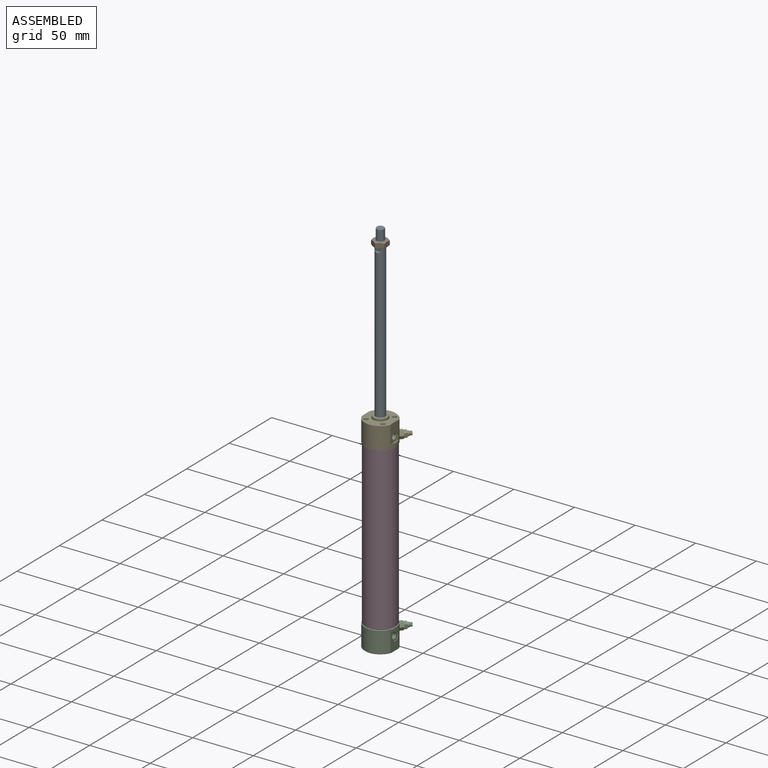
[diagram: assembled view]
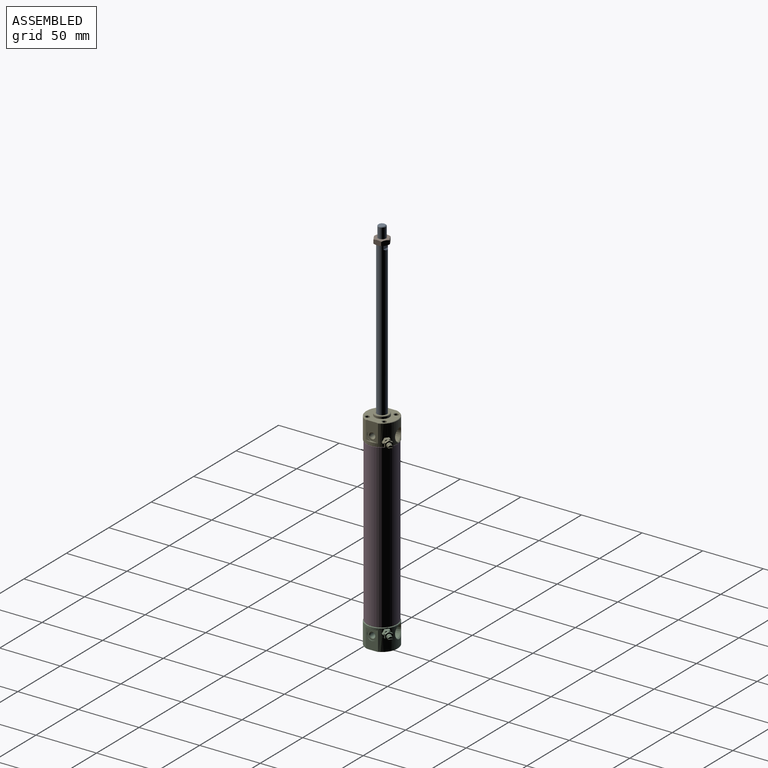
[diagram: assembled view, second angle]
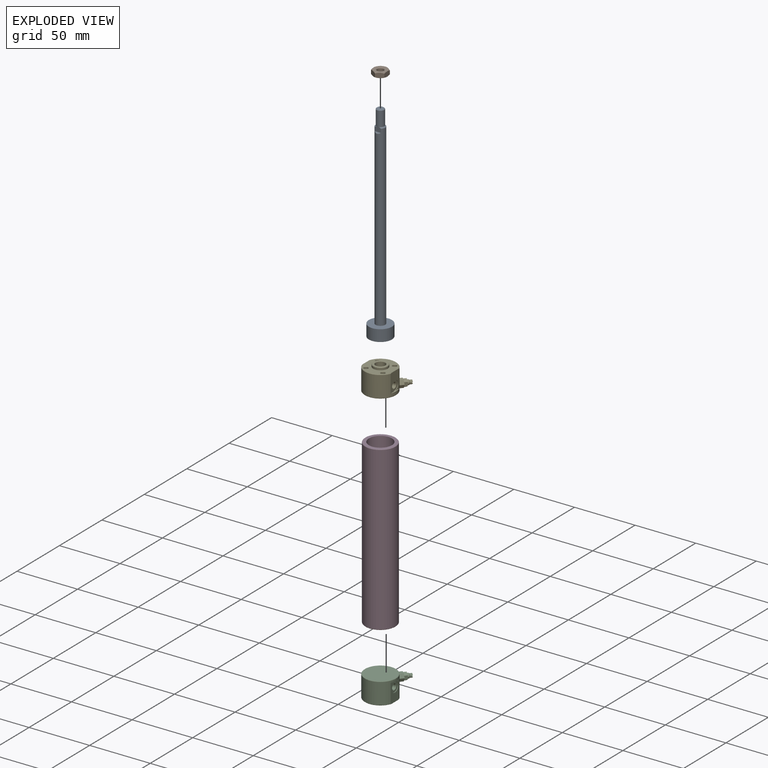
[diagram: exploded view]
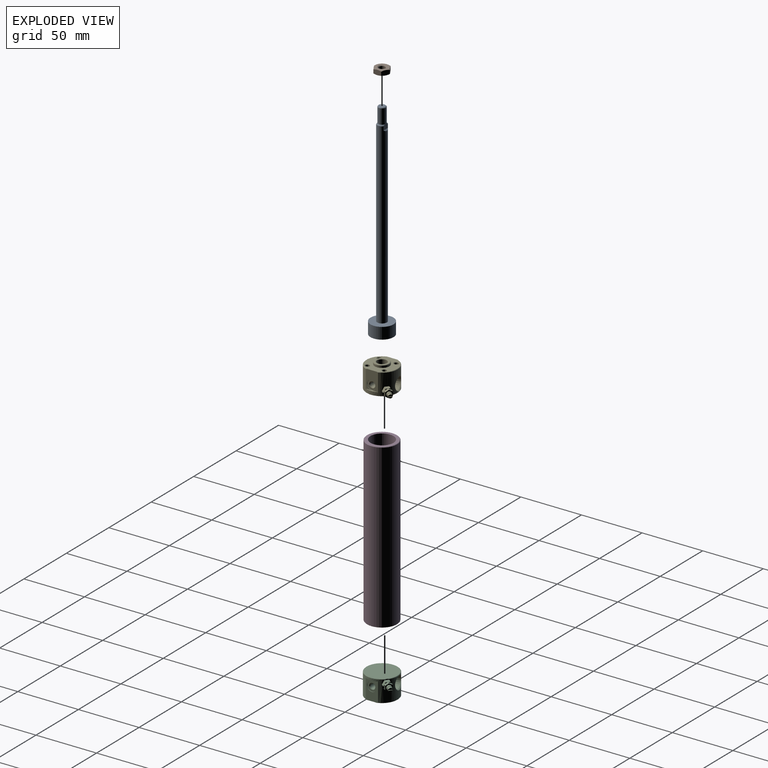
[diagram: exploded view, second angle]
ASSEMBLY  parts=5 mates=4
PART A: 15 faces, bbox 20.9x20.9x172 mm
  f0: plane 5.47x4.28mm, normal (0,1,0), area 19.4mm2, adj f1,f5,f7,f8,f12
  f1: plane 1.78x0.13mm, normal (0,0,-1), area 0.2mm2, adj f0,f13
  f2: plane 19.02x19.02mm, normal (0,0,-1), area 284.3mm2, adj f3
  f3: cylinder r=9.51mm len=19.02mm, axis (0,0,1), area 569.3mm2, adj f2,f4
  f4: plane 19.02x19.02mm, normal (0,0,1), area 234mm2, adj f3,f5
  f5: cylinder r=4mm len=147.02mm, axis (0,0,1), area 3659.9mm2, adj f0,f4,f7,f8,f9,f10,f12
  f6: plane 5.27x5.27mm, normal (0,0,1), area 21.8mm2, adj f14
  f7: cone r=3.17mm half-angle=45deg, axis (0,0,-1), area 9mm2, adj f0,f5,f9,f13
  f8: cone r=3.17mm half-angle=45deg, axis (0,0,-1), area 9mm2, adj f0,f5,f9,f13
  f9: plane 5.47x4.28mm, normal (0,-1,0), area 19.4mm2, adj f5,f7,f8,f10,f11
  f10: plane 7.09x2.86mm, normal (0,-0.71,0.71), area 4.8mm2, adj f5,f9
  f11: plane 1.78x0.13mm, normal (0,0,-1), area 0.2mm2, adj f9,f13
  f12: plane 7.09x2.86mm, normal (0,0.71,0.71), area 4.8mm2, adj f0,f5
  f13: cylinder r=3.17mm len=12.16mm, axis (0,0,1), area 242.6mm2, adj f1,f7,f8,f11,f14
  f14: cone r=2.63mm half-angle=45deg, axis (0,0,-1), area 14mm2, adj f6,f13
PART B: 23 faces, bbox 4.5x13.4x13.4 mm
  f0: cone r=8.99mm half-angle=60deg, axis (-1,0,0), area 3mm2, adj f2,f8,f21
  f1: plane 6.08x4.49mm, normal (0,-0.87,0.5), area 23.2mm2, adj f14,f15,f19,f20,f21,f22
  f2: plane 6.95x4.49mm, normal (0,0,-1), area 23.2mm2, adj f0,f3,f10,f12,f13,f21
  f3: plane 6.08x4.49mm, normal (0,0.87,-0.5), area 23.2mm2, adj f2,f4,f10,f11,f13,f17
  f4: plane 6.08x4.49mm, normal (0,0.87,0.5), area 23.2mm2, adj f3,f11,f16,f17,f18,f22
  f5: cone r=3.17mm half-angle=45deg, axis (-1,0,0), area 12.8mm2, adj f6,f7
  f6: cylinder r=2.68mm len=5.37mm, axis (-1,0,0), area 50.2mm2, adj f5,f9
  f7: plane 11.11x11.11mm, normal (-1,0,0), area 65.3mm2, adj f5,f10,f11,f12,f14,f15,f16
  f8: plane 11.11x11.11mm, normal (1,0,0), area 65.3mm2, adj f0,f9,f13,f17,f18,f19,f20
  f9: cone r=2.68mm half-angle=45deg, axis (1,0,0), area 12.8mm2, adj f6,f8
  f10: cone r=5.56mm half-angle=60deg, axis (1,0,0), area 3mm2, adj f2,f3,f7
  f11: cone r=5.56mm half-angle=60deg, axis (1,0,0), area 3mm2, adj f3,f4,f7
  f12: cone r=5.56mm half-angle=60deg, axis (1,0,0), area 3mm2, adj f2,f7,f21
  f13: cone r=8.99mm half-angle=60deg, axis (-1,0,0), area 3mm2, adj f2,f3,f8
  f14: cone r=5.56mm half-angle=60deg, axis (1,0,0), area 3mm2, adj f1,f7,f21
  f15: cone r=5.56mm half-angle=60deg, axis (1,0,0), area 3mm2, adj f1,f7,f22
  f16: cone r=5.56mm half-angle=60deg, axis (1,0,0), area 3mm2, adj f4,f7,f22
  f17: cone r=8.99mm half-angle=60deg, axis (-1,0,0), area 3mm2, adj f3,f4,f8
  f18: cone r=8.99mm half-angle=60deg, axis (-1,0,0), area 3mm2, adj f4,f8,f22
  f19: cone r=8.99mm half-angle=60deg, axis (-1,0,0), area 3mm2, adj f1,f8,f22
  f20: cone r=8.99mm half-angle=60deg, axis (-1,0,0), area 3mm2, adj f1,f8,f21
  f21: plane 6.08x4.49mm, normal (0,-0.87,-0.5), area 23.2mm2, adj f0,f1,f2,f12,f14,f20
  f22: plane 6.95x4.49mm, normal (0,0,1), area 23.2mm2, adj f1,f4,f15,f16,f18,f19
PART C: 79 faces, bbox 28.4x31x20.1 mm
  f0: cylinder r=3.91mm len=5.23mm, axis (0.64,0.77,0), area 0mm2, adj f6,f48
  f1: plane 16.02x10.08mm, normal (-1,0,0), area 110.4mm2, adj f4,f6,f49,f55,f61,f78
  f2: plane 16.02x10.08mm, normal (1,0,0), area 110.4mm2, adj f4,f6,f49,f56,f62,f78
  f3: cone r=12.65mm half-angle=45deg, axis (0,0,-1), area 34.2mm2, adj f5,f6,f50
  f4: cone r=12.95mm half-angle=45deg, axis (0,0,1), area 13.3mm2, adj f1,f2,f6,f78
  f5: plane 25.3x25.3mm, normal (0,0,1), area 502.7mm2, adj f3
  f6: cylinder r=12.95mm len=25.91mm, axis (0,0,1), area 950.2mm2, adj f0,f1,f2,f3,f4,f18,f25,f34
  f7: plane 2.13x1.79mm, normal (0.64,0.77,0), area 2.2mm2, adj f26,f31
  f8: plane 2.13x1.79mm, normal (0.64,0.77,0), area 2.2mm2, adj f30,f35
  f9: plane 6.36x4.22mm, normal (0.64,0.77,0), area 13.8mm2, adj f11,f12,f13,f14,f15,f16,f27
  f10: plane 0.52x0.23mm, normal (-0.64,-0.77,0), area 0.1mm2, adj f11,f12,f19
  f11: plane 3.18x1.83mm, normal (0.77,-0.64,0), area 7.6mm2, adj f9,f10,f12,f16,f37,f46
  f12: plane 3.65x3.6mm, normal (0.38,-0.32,-0.87), area 7.6mm2, adj f9,f10,f11,f13,f41,f45
  f13: plane 3.65x3.6mm, normal (-0.38,0.32,-0.87), area 7.6mm2, adj f9,f12,f14,f40,f41,f44
  f14: plane 3.18x1.83mm, normal (-0.77,0.64,0), area 7.6mm2, adj f9,f13,f15,f39,f40,f43
  f15: plane 3.65x3.6mm, normal (-0.38,0.32,0.87), area 7.6mm2, adj f9,f14,f16,f38,f39,f42
  f16: plane 3.65x3.6mm, normal (0.38,-0.32,0.87), area 7.6mm2, adj f9,f11,f15,f17,f37,f38
  f17: plane 1.65x1.39mm, normal (0.64,0.77,0), area 0.9mm2, adj f16,f20,f21
  f18: plane 0.22x0.05mm, normal (-0.64,-0.77,0), area 0mm2, adj f6,f19,f20
  f19: plane 3.8x3.58mm, normal (0.66,-0.56,-0.5), area 12.2mm2, adj f10,f18,f20,f24,f45,f46,f48
  f20: plane 3.8x3.58mm, normal (0.66,-0.56,0.5), area 12.2mm2, adj f17,f18,f19,f21,f37,f46,f47
  f21: plane 4.92x4.92mm, normal (0,0,1), area 12.2mm2, adj f17,f20,f22,f38,f42,f47
  f22: plane 3.8x3.58mm, normal (-0.66,0.56,0.5), area 12.2mm2, adj f21,f23,f25,f39,f42,f43,f47
  f23: plane 3.8x3.58mm, normal (-0.66,0.56,-0.5), area 12.2mm2, adj f22,f24,f25,f40,f43,f44,f48
  f24: plane 4.92x4.92mm, normal (0,0,-1), area 12.2mm2, adj f19,f23,f41,f44,f45,f48
  f25: plane 0.22x0.05mm, normal (-0.64,-0.77,0), area 0mm2, adj f6,f22,f23
  f26: plane 2.76x2.47mm, normal (0,0,-1), area 2.4mm2, adj f7,f29,f31,f36
  f27: cylinder r=1.99mm len=3.99mm, axis (0.64,0.77,0), area 18.2mm2, adj f9,f28
  f28: cone r=1.57mm half-angle=45deg, axis (-0.64,-0.77,0), area 6.7mm2, adj f27,f29
  f29: cylinder r=1.57mm len=3.61mm, axis (0.64,0.77,0), area 17.5mm2, adj f26,f28,f30,f31,f35,f36
  f30: cone r=1.44mm half-angle=45deg, axis (-0.64,-0.77,0), area 0.7mm2, adj f8,f29,f35
  f31: cone r=1.44mm half-angle=45deg, axis (-0.64,-0.77,0), area 0.7mm2, adj f7,f26,f29
  f32: plane 9.25x9.11mm, normal (-0.17,0.98,0), area 67.1mm2, adj f33
  f33: cone r=4.84mm half-angle=1.8deg, axis (-0.17,0.98,0), area 206.2mm2, adj f32,f34
  f34: cone r=5.45mm half-angle=31.2deg, axis (-0.17,0.98,0), area 18.1mm2, adj f6,f33
  f35: plane 2.76x2.47mm, normal (0,0,1), area 2.4mm2, adj f8,f29,f30,f36
  f36: plane 2.41x2.02mm, normal (0.64,0.77,0), area 2.4mm2, adj f26,f29,f35
  f37: plane 0.52x0.23mm, normal (-0.64,-0.77,0), area 0.1mm2, adj f11,f16,f20
  f38: plane 0.46x0.38mm, normal (-0.64,-0.77,0), area 0.1mm2, adj f15,f16,f21
  f39: plane 0.52x0.23mm, normal (-0.64,-0.77,0), area 0.1mm2, adj f14,f15,f22
  f40: plane 0.52x0.23mm, normal (-0.64,-0.77,0), area 0.1mm2, adj f13,f14,f23
  f41: plane 0.46x0.38mm, normal (-0.64,-0.77,0), area 0.1mm2, adj f12,f13,f24
  f42: plane 1.65x1.39mm, normal (0.64,0.77,0), area 0.9mm2, adj f15,f21,f22
  f43: plane 2.49x0.55mm, normal (0.64,0.77,0), area 0.9mm2, adj f14,f22,f23
  f44: plane 1.65x1.39mm, normal (0.64,0.77,0), area 0.9mm2, adj f13,f23,f24
  f45: plane 1.65x1.39mm, normal (0.64,0.77,0), area 0.9mm2, adj f12,f19,f24
  f46: plane 2.49x0.55mm, normal (0.64,0.77,0), area 0.9mm2, adj f11,f19,f20
  f47: plane 5.23x4.39mm, normal (0.64,0.77,0), area 7.1mm2, adj f6,f20,f21,f22,f50
  f48: plane 5.23x4.39mm, normal (0.64,0.77,0), area 7.1mm2, adj f0,f6,f19,f23,f24
  f49: cone r=12.95mm half-angle=45deg, axis (0,0,1), area 13.3mm2, adj f1,f2,f6,f78
  f50: cylinder r=3.91mm len=5.48mm, axis (0.64,0.77,0), area 2.1mm2, adj f3,f6,f47
  f51: plane 4.13x4.13mm, normal (-1,0,0), area 13.4mm2, adj f52
  f52: cylinder r=2.07mm len=5.08mm, axis (-1,0,0), area 66mm2, adj f51,f53
  f53: cone r=2.5mm half-angle=45deg, axis (-1,0,0), area 8.8mm2, adj f52,f54
  f54: plane 8x8mm, normal (-1,0,0), area 30.6mm2, adj f53,f55
  f55: cylinder r=4mm len=8mm, axis (-1,0,0), area 12.8mm2, adj f1,f54
  f56: cylinder r=4mm len=8mm, axis (-1,0,0), area 12.8mm2, adj f2,f57
  f57: plane 8x8mm, normal (1,0,0), area 30.6mm2, adj f56,f58
  f58: cone r=2.07mm half-angle=45deg, axis (1,0,0), area 8.8mm2, adj f57,f59
  f59: cylinder r=2.07mm len=5.08mm, axis (-1,0,0), area 66mm2, adj f58,f60
  f60: plane 4.13x4.13mm, normal (1,0,0), area 13.4mm2, adj f59
  f61: plane 10.06x1.02mm, normal (0,0,-1), area 6.9mm2, adj f1,f6
  f62: plane 10.06x1.02mm, normal (0,0,-1), area 6.9mm2, adj f2,f6
  f63: cone r=1.7mm half-angle=45deg, axis (0,0,-1), area 6.4mm2, adj f64,f78
  f64: cylinder r=1.7mm len=6.73mm, axis (0,0,1), area 71.9mm2, adj f63,f65
  f65: cone r=874.62mm half-angle=61deg, axis (0,0,-1), area 10.4mm2, adj f64
  f66: cone r=1.7mm half-angle=45deg, axis (0,0,-1), area 6.4mm2, adj f67,f78
  f67: cylinder r=1.7mm len=6.73mm, axis (0,0,1), area 71.9mm2, adj f66,f68
  f68: cone r=874.62mm half-angle=61deg, axis (0,0,-1), area 10.4mm2, adj f67
  f69: cone r=1.7mm half-angle=45deg, axis (0,0,-1), area 6.4mm2, adj f70,f78
  f70: cylinder r=1.7mm len=6.73mm, axis (0,0,1), area 71.9mm2, adj f69,f71
  f71: cone r=874.62mm half-angle=61deg, axis (0,0,-1), area 10.4mm2, adj f70
  f72: cone r=1.7mm half-angle=45deg, axis (0,0,-1), area 6.4mm2, adj f73,f78
  f73: cylinder r=1.7mm len=6.73mm, axis (0,0,1), area 71.9mm2, adj f72,f74
  f74: cone r=874.62mm half-angle=61deg, axis (0,0,-1), area 10.4mm2, adj f73
  f75: plane 11.38x11.38mm, normal (0,0,-1), area 101.7mm2, adj f76
  f76: cone r=5.99mm half-angle=45deg, axis (0,0,1), area 15.8mm2, adj f75,f77
  f77: cylinder r=5.99mm len=11.99mm, axis (0,0,1), area 65.1mm2, adj f76,f78
  f78: plane 25.3x23.88mm, normal (0,0,-1), area 327.3mm2, adj f1,f2,f4,f49,f63,f66,f69,f72
PART D: 6 faces, bbox 25x25x134.7 mm
  f0: plane 24.38x24.38mm, normal (0,0,1), area 182mm2, adj f1,f5
  f1: cylinder r=9.53mm len=134.67mm, axis (0,0,1), area 8059.7mm2, adj f0,f2
  f2: plane 24.38x24.38mm, normal (0,0,-1), area 182mm2, adj f1,f3
  f3: cone r=12.19mm half-angle=45deg, axis (0,0,1), area 33.4mm2, adj f2,f4
  f4: cylinder r=12.5mm len=134.06mm, axis (0,0,1), area 10526.4mm2, adj f3,f5
  f5: cone r=12.5mm half-angle=45deg, axis (0,0,-1), area 33.4mm2, adj f0,f4
PART E: 81 faces, bbox 28.4x31x20.1 mm
  f0: cylinder r=3.91mm len=5.48mm, axis (0.64,0.77,0), area 2.1mm2, adj f1,f18,f77
  f1: cylinder r=12.95mm len=25.91mm, axis (0,0,1), area 981.4mm2, adj f0,f2,f3,f4,f18,f25,f26,f27
  f2: cone r=12.95mm half-angle=45deg, axis (0,0,-1), area 13.3mm2, adj f1,f3,f4,f24
  f3: plane 15.04x10.08mm, normal (-1,0,0), area 100.6mm2, adj f1,f2,f24,f25,f27,f33
  f4: plane 15.04x10.08mm, normal (1,0,0), area 100.6mm2, adj f1,f2,f24,f25,f26,f32
  f5: cone r=1.7mm half-angle=61deg, axis (0,0,1), area 10.4mm2, adj f6
  f6: cylinder r=1.7mm len=6.73mm, axis (0,0,1), area 71.9mm2, adj f5,f7
  f7: cone r=2.08mm half-angle=45deg, axis (0,0,1), area 6.4mm2, adj f6,f24
  f8: cone r=1.7mm half-angle=61deg, axis (0,0,1), area 10.4mm2, adj f9
  f9: cylinder r=1.7mm len=6.73mm, axis (0,0,1), area 71.9mm2, adj f8,f10
  f10: cone r=2.08mm half-angle=45deg, axis (0,0,1), area 6.4mm2, adj f9,f24
  f11: cone r=1.7mm half-angle=61deg, axis (0,0,1), area 10.4mm2, adj f12
  f12: cylinder r=1.7mm len=6.73mm, axis (0,0,1), area 71.9mm2, adj f11,f13
  f13: cone r=2.08mm half-angle=45deg, axis (0,0,1), area 6.4mm2, adj f12,f24
  f14: cone r=1.7mm half-angle=61deg, axis (0,0,1), area 10.4mm2, adj f15
  f15: cylinder r=1.7mm len=6.73mm, axis (0,0,1), area 71.9mm2, adj f14,f16
  f16: cone r=2.08mm half-angle=45deg, axis (0,0,1), area 6.4mm2, adj f15,f24
  f17: cylinder r=5.99mm len=11.99mm, axis (0,0,1), area 65.1mm2, adj f23,f24
  f18: cone r=12.65mm half-angle=45deg, axis (0,0,1), area 34.2mm2, adj f0,f1,f19
  f19: plane 25.3x25.3mm, normal (0,0,-1), area 452.1mm2, adj f18,f20
  f20: cylinder r=4.01mm len=19.79mm, axis (0,0,1), area 498.9mm2, adj f19,f21
  f21: cone r=4.27mm half-angle=45deg, axis (0,0,1), area 9.3mm2, adj f20,f22
  f22: plane 11.38x11.38mm, normal (0,0,1), area 44.5mm2, adj f21,f23
  f23: cone r=5.99mm half-angle=45deg, axis (0,0,-1), area 15.8mm2, adj f17,f22
  f24: plane 25.3x23.88mm, normal (0,0,1), area 327.3mm2, adj f2,f3,f4,f7,f10,f13,f16,f17
  f25: cone r=12.95mm half-angle=45deg, axis (0,0,-1), area 13.3mm2, adj f1,f3,f4,f24
  f26: plane 10.06x1.02mm, normal (0,0,1), area 6.9mm2, adj f1,f4
  f27: plane 10.06x1.02mm, normal (0,0,1), area 6.9mm2, adj f1,f3
  f28: plane 4.13x4.13mm, normal (1,0,0), area 13.4mm2, adj f29
  f29: cylinder r=2.07mm len=5.08mm, axis (-1,0,0), area 66mm2, adj f28,f30
  f30: cone r=2.07mm half-angle=45deg, axis (1,0,0), area 8.8mm2, adj f29,f31
  f31: plane 8x8mm, normal (1,0,0), area 30.6mm2, adj f30,f32
  f32: cylinder r=4mm len=8mm, axis (-1,0,0), area 12.8mm2, adj f4,f31
  f33: cylinder r=4mm len=8mm, axis (-1,0,0), area 12.8mm2, adj f3,f34
  f34: plane 8x8mm, normal (-1,0,0), area 30.6mm2, adj f33,f35
  f35: cone r=2.5mm half-angle=45deg, axis (-1,0,0), area 8.8mm2, adj f34,f36
  f36: cylinder r=2.07mm len=5.08mm, axis (-1,0,0), area 66mm2, adj f35,f37
  f37: plane 4.13x4.13mm, normal (-1,0,0), area 13.4mm2, adj f36
  f38: cylinder r=3.91mm len=5.23mm, axis (0.64,0.77,0), area 0mm2, adj f1,f74
  f39: plane 0.22x0.05mm, normal (-0.64,-0.77,0), area 0mm2, adj f1,f44,f45
  f40: plane 4.92x4.92mm, normal (0,0,-1), area 12.2mm2, adj f41,f45,f47,f75,f76,f77
  f41: plane 3.8x3.58mm, normal (-0.66,0.56,-0.5), area 12.2mm2, adj f40,f42,f46,f48,f70,f76,f77
  f42: plane 3.8x3.58mm, normal (-0.66,0.56,0.5), area 12.2mm2, adj f41,f43,f46,f49,f69,f70,f74
  f43: plane 4.92x4.92mm, normal (0,0,1), area 12.2mm2, adj f42,f44,f50,f69,f71,f74
  f44: plane 3.8x3.58mm, normal (0.66,-0.56,0.5), area 12.2mm2, adj f39,f43,f45,f51,f71,f73,f74
  f45: plane 3.8x3.58mm, normal (0.66,-0.56,-0.5), area 12.2mm2, adj f39,f40,f44,f59,f73,f75,f77
  f46: plane 0.22x0.05mm, normal (-0.64,-0.77,0), area 0mm2, adj f1,f41,f42
  f47: plane 0.46x0.38mm, normal (-0.64,-0.77,0), area 0.1mm2, adj f40,f55,f56
  f48: plane 0.52x0.23mm, normal (-0.64,-0.77,0), area 0.1mm2, adj f41,f54,f55
  f49: plane 0.52x0.23mm, normal (-0.64,-0.77,0), area 0.1mm2, adj f42,f53,f54
  f50: plane 0.46x0.38mm, normal (-0.64,-0.77,0), area 0.1mm2, adj f43,f52,f53
  f51: plane 0.52x0.23mm, normal (-0.64,-0.77,0), area 0.1mm2, adj f44,f52,f57
  f52: plane 3.65x3.6mm, normal (0.38,-0.32,0.87), area 7.6mm2, adj f50,f51,f53,f57,f58,f71
  f53: plane 3.65x3.6mm, normal (-0.38,0.32,0.87), area 7.6mm2, adj f49,f50,f52,f54,f58,f69
  f54: plane 3.18x1.83mm, normal (-0.77,0.64,0), area 7.6mm2, adj f48,f49,f53,f55,f58,f70
  f55: plane 3.65x3.6mm, normal (-0.38,0.32,-0.87), area 7.6mm2, adj f47,f48,f54,f56,f58,f76
  f56: plane 3.65x3.6mm, normal (0.38,-0.32,-0.87), area 7.6mm2, adj f47,f55,f57,f58,f59,f75
  f57: plane 3.18x1.83mm, normal (0.77,-0.64,0), area 7.6mm2, adj f51,f52,f56,f58,f59,f73
  f58: plane 6.36x4.22mm, normal (0.64,0.77,0), area 13.8mm2, adj f52,f53,f54,f55,f56,f57,f61
  f59: plane 0.52x0.23mm, normal (-0.64,-0.77,0), area 0.1mm2, adj f45,f56,f57
  f60: cone r=1.57mm half-angle=45deg, axis (-0.64,-0.77,0), area 6.7mm2, adj f61,f72
  f61: cylinder r=1.99mm len=3.99mm, axis (0.64,0.77,0), area 18.2mm2, adj f58,f60
  f62: plane 2.76x2.47mm, normal (0,0,-1), area 2.4mm2, adj f63,f68,f72,f80
  f63: plane 2.41x2.02mm, normal (0.64,0.77,0), area 2.4mm2, adj f62,f64,f72
  f64: plane 2.76x2.47mm, normal (0,0,1), area 2.4mm2, adj f63,f72,f78,f79
  f65: cone r=5.45mm half-angle=31.2deg, axis (-0.17,0.98,0), area 19.2mm2, adj f1,f66
  f66: cone r=4.84mm half-angle=1.8deg, axis (-0.17,0.98,0), area 206.2mm2, adj f65,f67
  f67: plane 9.25x9.11mm, normal (-0.17,0.98,0), area 67.1mm2, adj f66
  f68: cone r=1.44mm half-angle=45deg, axis (-0.64,-0.77,0), area 0.7mm2, adj f62,f72,f80
  f69: plane 1.65x1.39mm, normal (0.64,0.77,0), area 0.9mm2, adj f42,f43,f53
  f70: plane 2.49x0.55mm, normal (0.64,0.77,0), area 0.9mm2, adj f41,f42,f54
  f71: plane 1.65x1.39mm, normal (0.64,0.77,0), area 0.9mm2, adj f43,f44,f52
  f72: cylinder r=1.57mm len=3.61mm, axis (0.64,0.77,0), area 17.5mm2, adj f60,f62,f63,f64,f68,f78
  f73: plane 2.49x0.55mm, normal (0.64,0.77,0), area 0.9mm2, adj f44,f45,f57
  f74: plane 5.23x4.39mm, normal (0.64,0.77,0), area 7.1mm2, adj f1,f38,f42,f43,f44
  f75: plane 1.65x1.39mm, normal (0.64,0.77,0), area 0.9mm2, adj f40,f45,f56
  f76: plane 1.65x1.39mm, normal (0.64,0.77,0), area 0.9mm2, adj f40,f41,f55
  f77: plane 5.23x4.39mm, normal (0.64,0.77,0), area 7.1mm2, adj f0,f1,f40,f41,f45
  f78: cone r=1.44mm half-angle=45deg, axis (-0.64,-0.77,0), area 0.7mm2, adj f64,f72,f79
  f79: plane 2.13x1.79mm, normal (0.64,0.77,0), area 2.2mm2, adj f64,f78
  f80: plane 2.13x1.79mm, normal (0.64,0.77,0), area 2.2mm2, adj f62,f68
PLACE A rot(axis=(-0.05,0.05,-1),0deg) t=(-24.46,13.41,274.22)mm
PLACE B rot(axis=(0,-1,0),90deg) t=(-24.46,13.41,273.73)mm
PLACE C rot(axis=(-0.05,0.05,-1),0deg) t=(-24.46,13.41,-7.74)mm
PLACE D rot(axis=(-0.05,0.05,-1),0deg) t=(-24.46,13.41,59.6)mm
PLACE E rot(axis=(-0.05,0.05,-1),0deg) t=(-24.46,13.41,126.94)mm
MATE fastened E.f1 <-> D.f1  axis (0,0,-1) through (-24.46,13.41,126.94)mm
MATE fastened C.f3 <-> D.f1  axis (0,0,1) through (-24.46,13.41,-7.74)mm
MATE fastened B.f0 <-> A.f3  axis (0,0,1) through (-24.46,13.41,274.22)mm
MATE slider A.f3 <-> D.f1  axis (0,0,-1) through (-24.46,13.41,116.85)mm
